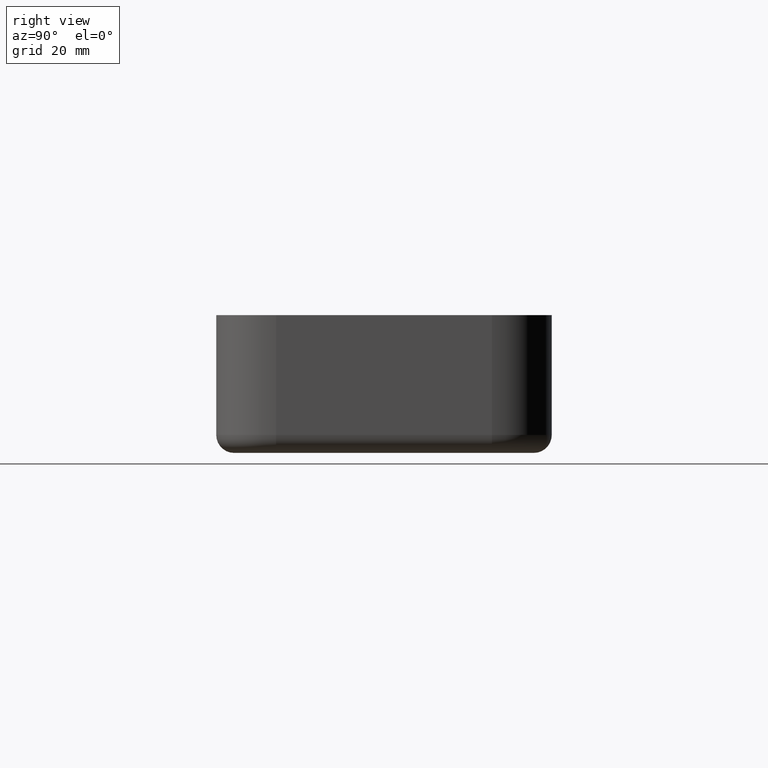
[diagram: clean part render]
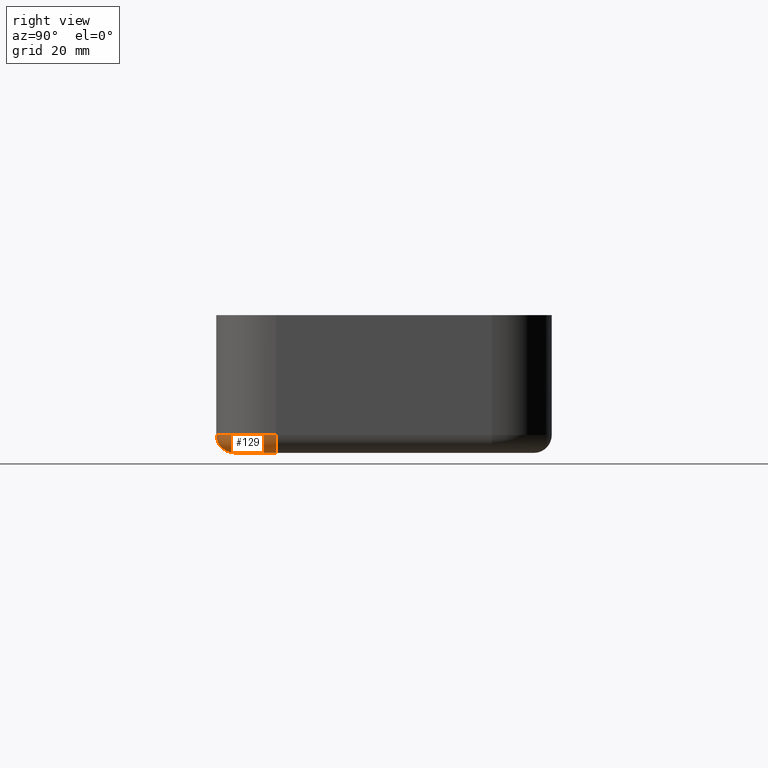
[diagram: same view with one face highlighted and labeled with its STEP entity id]
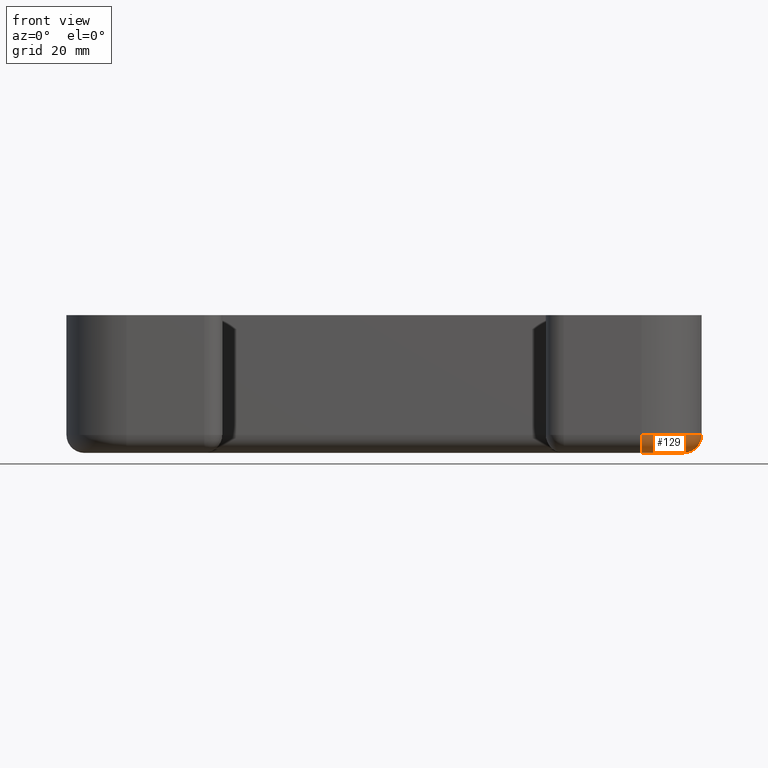
[diagram: same view with one face highlighted and labeled with its STEP entity id]
A machine part, right view. The second image highlights one B-rep face of the part: STEP entity #129.
A second angle (front view) of the same face is appended — the face is thin or edge-on in the first view.
In plain terms, the highlighted toroidal blend (fillet) surface has major radius 7 mm and minor (blend) radius 3 mm.
Its self-contained STEP definition (entity closure, byte-faithful):
#129 = ADVANCED_FACE( '', ( #256 ), #257, .T. );
#256 = FACE_OUTER_BOUND( '', #399, .T. );
#257 = TOROIDAL_SURFACE( '', #400, 6.99999999999999, 3.00000000000000 );
#399 = EDGE_LOOP( '', ( #881, #882, #883, #884 ) );
#400 = AXIS2_PLACEMENT_3D( '', #885, #886, #887 );
#881 = ORIENTED_EDGE( '', *, *, #1159, .F. );
#882 = ORIENTED_EDGE( '', *, *, #1125, .F. );
#883 = ORIENTED_EDGE( '', *, *, #1160, .F. );
#884 = ORIENTED_EDGE( '', *, *, #1102, .F. );
#885 = CARTESIAN_POINT( '', ( 43.0000000000000, -18.0000000000000, -20.0000000000000 ) );
#886 = DIRECTION( '', ( 0.000000000000000, 0.000000000000000, -1.00000000000000 ) );
#887 = DIRECTION( '', ( -1.00000000000000, 0.000000000000000, 0.000000000000000 ) );
#1102 = EDGE_CURVE( '', #1363, #1365, #1366, .T. );
#1125 = EDGE_CURVE( '', #1399, #1402, #1403, .F. );
#1159 = EDGE_CURVE( '', #1402, #1363, #1443, .T. );
#1160 = EDGE_CURVE( '', #1365, #1399, #1444, .T. );
#1363 = VERTEX_POINT( '', #1704 );
#1365 = VERTEX_POINT( '', #1707 );
#1366 = CIRCLE( '', #1708, 6.99999999999999 );
#1399 = VERTEX_POINT( '', #1757 );
#1402 = VERTEX_POINT( '', #1762 );
#1403 = CIRCLE( '', #1763, 9.99999999999999 );
#1443 = CIRCLE( '', #1831, 3.00000000000000 );
#1444 = CIRCLE( '', #1832, 3.00000000000000 );
#1704 = CARTESIAN_POINT( '', ( 50.0000000000000, -18.0000000000000, -23.0000000000000 ) );
#1707 = CARTESIAN_POINT( '', ( 43.0000000000000, -25.0000000000000, -23.0000000000000 ) );
#1708 = AXIS2_PLACEMENT_3D( '', #2042, #2043, #2044 );
#1757 = CARTESIAN_POINT( '', ( 43.0000000000000, -28.0000000000000, -20.0000000000000 ) );
#1762 = CARTESIAN_POINT( '', ( 53.0000000000000, -18.0000000000000, -20.0000000000000 ) );
#1763 = AXIS2_PLACEMENT_3D( '', #2075, #2076, #2077 );
#1831 = AXIS2_PLACEMENT_3D( '', #2121, #2122, #2123 );
#1832 = AXIS2_PLACEMENT_3D( '', #2124, #2125, #2126 );
#2042 = CARTESIAN_POINT( '', ( 43.0000000000000, -18.0000000000000, -23.0000000000000 ) );
#2043 = DIRECTION( '', ( 0.000000000000000, 0.000000000000000, -1.00000000000000 ) );
#2044 = DIRECTION( '', ( -1.00000000000000, 0.000000000000000, 0.000000000000000 ) );
#2075 = CARTESIAN_POINT( '', ( 43.0000000000000, -18.0000000000000, -20.0000000000000 ) );
#2076 = DIRECTION( '', ( 0.000000000000000, 0.000000000000000, -1.00000000000000 ) );
#2077 = DIRECTION( '', ( -1.00000000000000, 0.000000000000000, 0.000000000000000 ) );
#2121 = CARTESIAN_POINT( '', ( 50.0000000000000, -18.0000000000000, -20.0000000000000 ) );
#2122 = DIRECTION( '', ( 0.000000000000000, 1.00000000000000, 0.000000000000000 ) );
#2123 = DIRECTION( '', ( 0.000000000000000, 0.000000000000000, 1.00000000000000 ) );
#2124 = CARTESIAN_POINT( '', ( 43.0000000000000, -25.0000000000000, -20.0000000000000 ) );
#2125 = DIRECTION( '', ( -1.00000000000000, 0.000000000000000, 0.000000000000000 ) );
#2126 = DIRECTION( '', ( 0.000000000000000, 0.000000000000000, 1.00000000000000 ) );